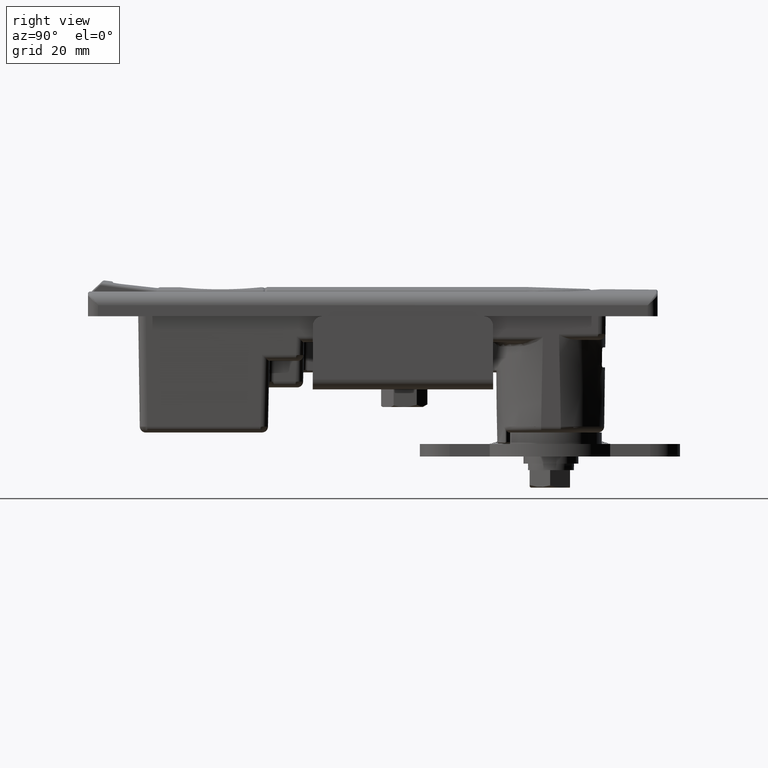
[diagram: clean part render]
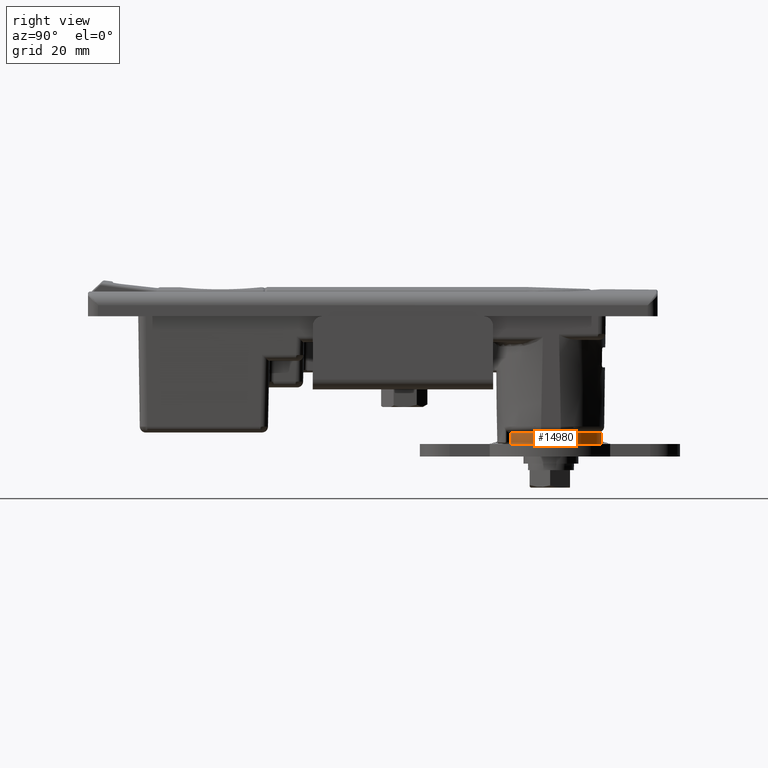
[diagram: same view with one face highlighted and labeled with its STEP entity id]
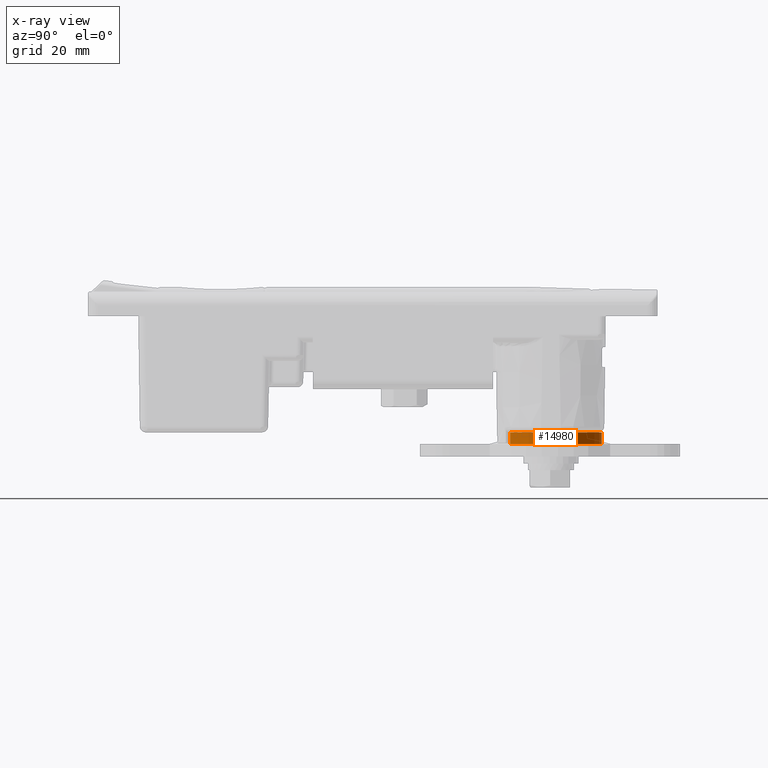
[diagram: x-ray of the same camera — body ghosted, the highlighted face saturated]
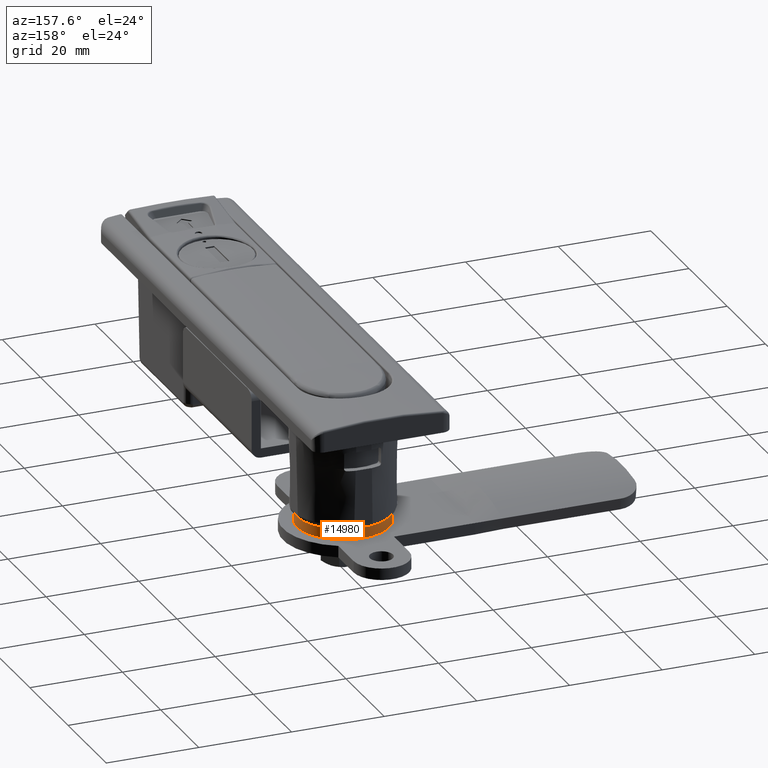
[diagram: same view with one face highlighted and labeled with its STEP entity id]
A machine part, right view. The second image highlights one B-rep face of the part: STEP entity #14980.
The next image is the same camera in x-ray: the body ghosted, the highlighted face saturated — about 0% of this face is hidden behind the body in this view.
A second angle (auxiliary view) of the same face is appended — the face is thin or edge-on in the first view.
In plain terms, the highlighted cylindrical surface (partial cylindrical patch) has radius 10 mm, axis along (-0, 0, 1).
Its self-contained STEP definition (entity closure, byte-faithful):
#1550=LINE('',#52918,#2470);
#1556=LINE('',#52933,#2476);
#2470=VECTOR('',#20463,2.3);
#2476=VECTOR('',#20477,2.3);
#3668=FACE_OUTER_BOUND('',#4621,.T.);
#4621=EDGE_LOOP('',(#13719,#13720,#13721,#13722));
#5748=CIRCLE('',#16527,10.);
#5749=CIRCLE('',#16528,10.);
#7140=VERTEX_POINT('',#52914);
#7142=VERTEX_POINT('',#52917);
#7146=VERTEX_POINT('',#52929);
#7147=VERTEX_POINT('',#52931);
#9338=EDGE_CURVE('',#7142,#7140,#1550,.T.);
#9346=EDGE_CURVE('',#7146,#7147,#1556,.T.);
#9347=EDGE_CURVE('',#7146,#7140,#5748,.T.);
#9348=EDGE_CURVE('',#7142,#7147,#5749,.T.);
#13719=ORIENTED_EDGE('',*,*,#9338,.T.);
#13720=ORIENTED_EDGE('',*,*,#9347,.F.);
#13721=ORIENTED_EDGE('',*,*,#9346,.T.);
#13722=ORIENTED_EDGE('',*,*,#9348,.F.);
#14125=CYLINDRICAL_SURFACE('',#16526,10.);
#14980=ADVANCED_FACE('',(#3668),#14125,.T.);
#16526=AXIS2_PLACEMENT_3D('',#52934,#20478,#20479);
#16527=AXIS2_PLACEMENT_3D('',#52935,#20480,#20481);
#16528=AXIS2_PLACEMENT_3D('',#52936,#20482,#20483);
#20463=DIRECTION('',(0.,-1.,0.));
#20477=DIRECTION('',(0.,1.,0.));
#20478=DIRECTION('center_axis',(0.,1.,0.));
#20479=DIRECTION('ref_axis',(1.,0.,0.));
#20480=DIRECTION('center_axis',(0.,-1.,0.));
#20481=DIRECTION('ref_axis',(1.,0.,0.));
#20482=DIRECTION('center_axis',(0.,1.,0.));
#20483=DIRECTION('ref_axis',(1.,0.,0.));
#52914=CARTESIAN_POINT('',(8.29027425055584,-1.15,-5.59207947462935));
#52917=CARTESIAN_POINT('',(8.29027425055584,1.15,-5.59207947462935));
#52918=CARTESIAN_POINT('',(8.29027425055584,0.,-5.59207947462935));
#52929=CARTESIAN_POINT('',(-5.83344401914923,-1.15,8.12224912665525));
#52931=CARTESIAN_POINT('',(-5.83344401914923,1.15,8.12224912665525));
#52933=CARTESIAN_POINT('',(-5.83344401914923,0.,8.12224912665526));
#52934=CARTESIAN_POINT('Origin',(0.,0.,0.));
#52935=CARTESIAN_POINT('Origin',(0.,-1.15,0.));
#52936=CARTESIAN_POINT('Origin',(0.,1.15,0.));